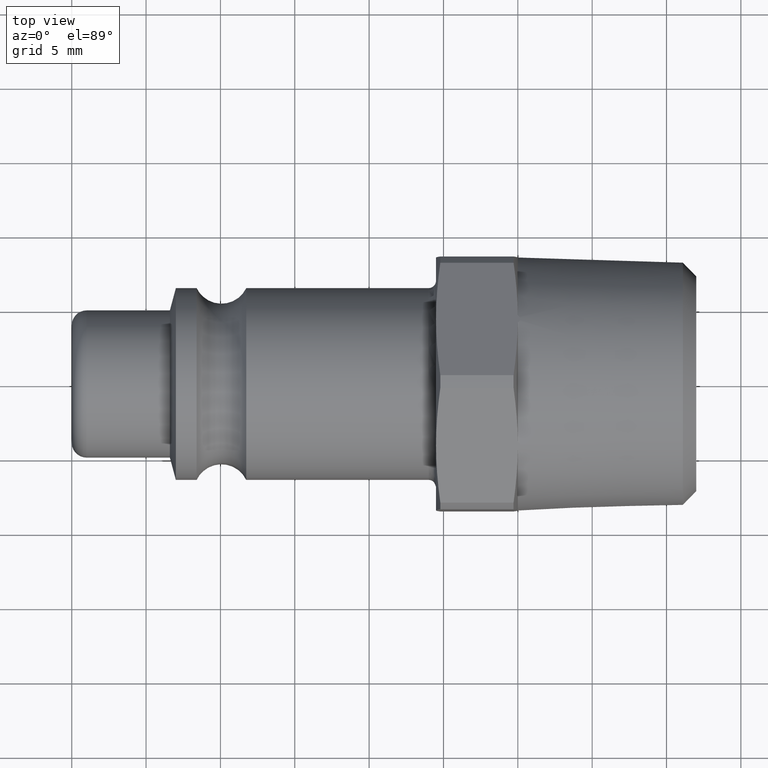
[diagram: clean part render]
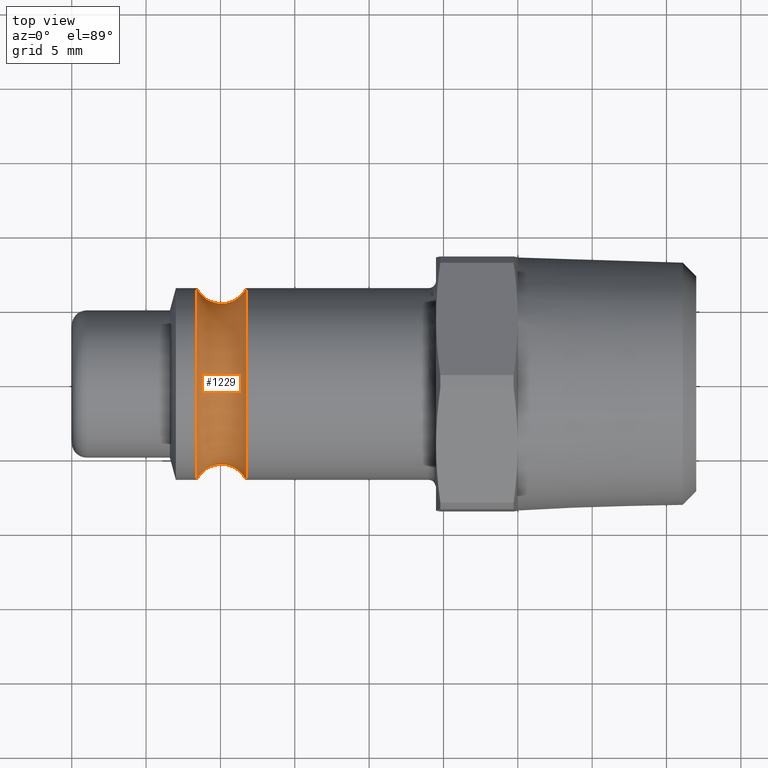
[diagram: same view with one face highlighted and labeled with its STEP entity id]
A machine part, top view. The second image highlights one B-rep face of the part: STEP entity #1229.
In plain terms, the highlighted toroidal blend (fillet) surface has major radius 7.25 mm and minor (blend) radius 1.85 mm.
Its self-contained STEP definition (entity closure, byte-faithful):
#169=CARTESIAN_POINT('',(11.736165463522454,6.449999999999999,0.0));
#170=VERTEX_POINT('',#169);
#171=CARTESIAN_POINT('',(11.736165463522454,0.0,0.0));
#172=DIRECTION('',(1.0,0.0,0.0));
#173=DIRECTION('',(0.0,1.0,0.0));
#174=AXIS2_PLACEMENT_3D('',#171,#172,#173);
#175=CIRCLE('',#174,6.449999999999999);
#176=EDGE_CURVE('',#170,#170,#175,.T.);
#1203=CARTESIAN_POINT('',(8.4,6.45,0.0));
#1204=VERTEX_POINT('',#1203);
#1205=CARTESIAN_POINT('',(8.4,0.0,0.0));
#1206=DIRECTION('',(1.0,0.0,0.0));
#1207=DIRECTION('',(0.0,1.0,0.0));
#1208=AXIS2_PLACEMENT_3D('',#1205,#1206,#1207);
#1209=CIRCLE('',#1208,6.45);
#1210=EDGE_CURVE('',#1204,#1204,#1209,.T.);
#1218=CARTESIAN_POINT('',(10.068082731761228,0.0,0.0));
#1219=DIRECTION('',(1.0,0.0,0.0));
#1220=DIRECTION('',(0.0,0.0,-1.0));
#1221=AXIS2_PLACEMENT_3D('',#1218,#1219,#1220);
#1222=TOROIDAL_SURFACE('',#1221,7.250000000000001,1.85);
#1223=ORIENTED_EDGE('',*,*,#176,.F.);
#1224=EDGE_LOOP('',(#1223));
#1225=FACE_OUTER_BOUND('',#1224,.T.);
#1226=ORIENTED_EDGE('',*,*,#1210,.T.);
#1227=EDGE_LOOP('',(#1226));
#1228=FACE_BOUND('',#1227,.T.);
#1229=ADVANCED_FACE('',(#1225,#1228),#1222,.F.);